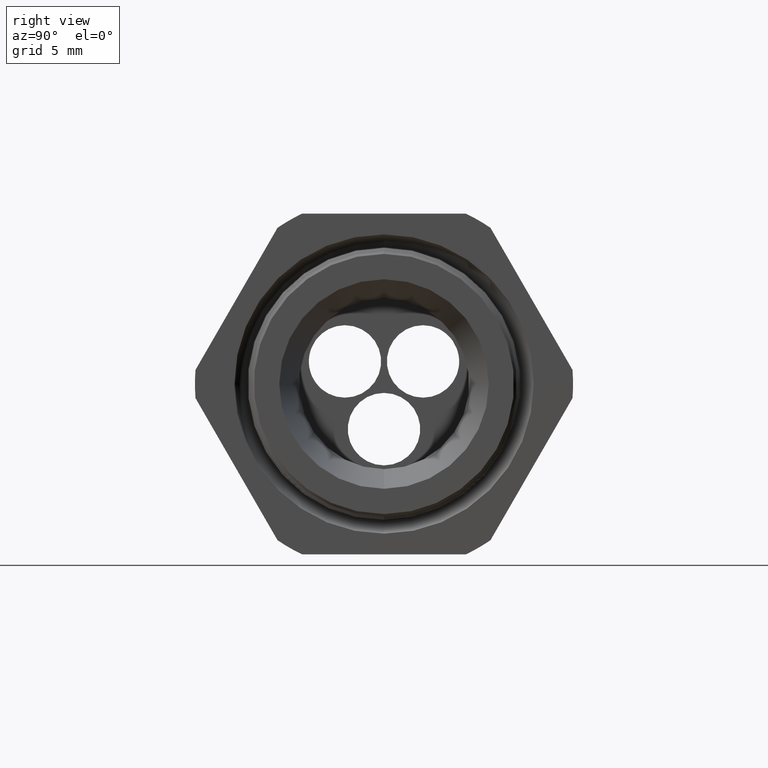
[diagram: clean part render]
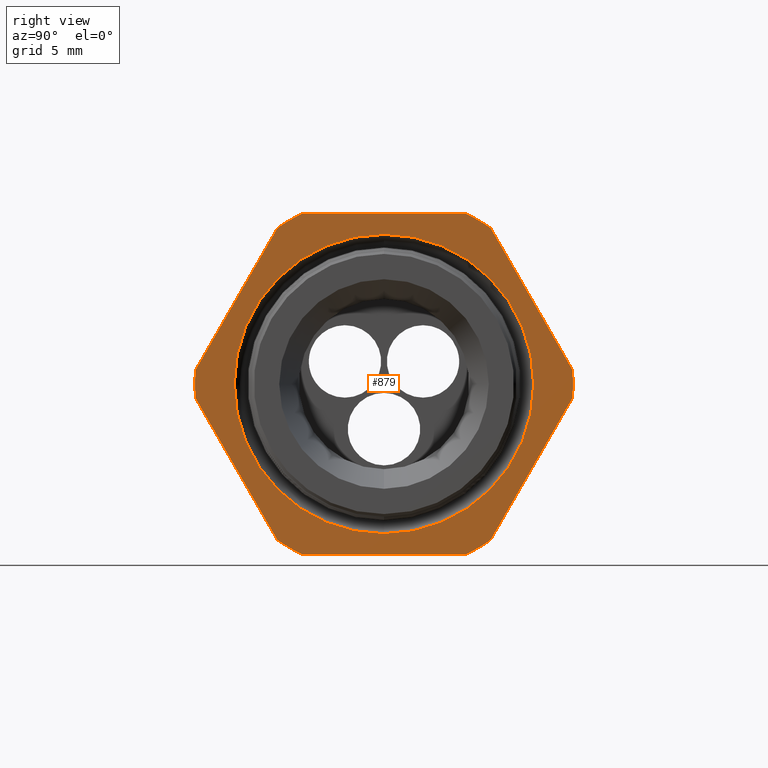
[diagram: same view with one face highlighted and labeled with its STEP entity id]
A machine part, right view. The second image highlights one B-rep face of the part: STEP entity #879.
In plain terms, the highlighted planar face has unit normal (1, 0, 0).
Its self-contained STEP definition (entity closure, byte-faithful):
#860 = VERTEX_POINT ( 'NONE', #3449 ) ;
#861 = ORIENTED_EDGE ( 'NONE', *, *, #862, .T. ) ;
#862 = EDGE_CURVE ( 'NONE', #860, #863, #3507, .T. ) ;
#863 = VERTEX_POINT ( 'NONE', #3502 ) ;
#864 = ORIENTED_EDGE ( 'NONE', *, *, #865, .T. ) ;
#865 = EDGE_CURVE ( 'NONE', #863, #866, #3501, .T. ) ;
#866 = VERTEX_POINT ( 'NONE', #3497 ) ;
#867 = ORIENTED_EDGE ( 'NONE', *, *, #868, .T. ) ;
#868 = EDGE_CURVE ( 'NONE', #866, #869, #3496, .T. ) ;
#869 = VERTEX_POINT ( 'NONE', #3491 ) ;
#870 = VERTEX_POINT ( 'NONE', #3490 ) ;
#879 = ADVANCED_FACE ( 'NONE', ( #3530, #3529 ), #3528, .T. ) ;
#880 = EDGE_LOOP ( 'NONE', ( #881, #938 ) ) ;
#881 = ORIENTED_EDGE ( 'NONE', *, *, #882, .F. ) ;
#882 = EDGE_CURVE ( 'NONE', #1326, #1323, #3523, .T. ) ;
#911 = ORIENTED_EDGE ( 'NONE', *, *, #912, .T. ) ;
#912 = EDGE_CURVE ( 'NONE', #937, #913, #3585, .T. ) ;
#913 = VERTEX_POINT ( 'NONE', #3581 ) ;
#914 = ORIENTED_EDGE ( 'NONE', *, *, #915, .T. ) ;
#915 = EDGE_CURVE ( 'NONE', #913, #916, #3580, .T. ) ;
#916 = VERTEX_POINT ( 'NONE', #3576 ) ;
#917 = ORIENTED_EDGE ( 'NONE', *, *, #918, .T. ) ;
#918 = EDGE_CURVE ( 'NONE', #916, #942, #3574, .T. ) ;
#924 = ORIENTED_EDGE ( 'NONE', *, *, #925, .T. ) ;
#925 = EDGE_CURVE ( 'NONE', #869, #870, #3621, .T. ) ;
#926 = ORIENTED_EDGE ( 'NONE', *, *, #927, .T. ) ;
#927 = EDGE_CURVE ( 'NONE', #870, #928, #3617, .T. ) ;
#928 = VERTEX_POINT ( 'NONE', #3612 ) ;
#929 = ORIENTED_EDGE ( 'NONE', *, *, #930, .T. ) ;
#930 = EDGE_CURVE ( 'NONE', #928, #931, #3611, .T. ) ;
#931 = VERTEX_POINT ( 'NONE', #3607 ) ;
#932 = ORIENTED_EDGE ( 'NONE', *, *, #933, .T. ) ;
#933 = EDGE_CURVE ( 'NONE', #931, #934, #3605, .T. ) ;
#934 = VERTEX_POINT ( 'NONE', #3665 ) ;
#935 = ORIENTED_EDGE ( 'NONE', *, *, #936, .T. ) ;
#936 = EDGE_CURVE ( 'NONE', #934, #937, #3664, .T. ) ;
#937 = VERTEX_POINT ( 'NONE', #3660 ) ;
#938 = ORIENTED_EDGE ( 'NONE', *, *, #1325, .F. ) ;
#939 = EDGE_LOOP ( 'NONE', ( #940, #861, #864, #867, #924, #926, #929, #932, #935, #911, #914, #917 ) ) ;
#940 = ORIENTED_EDGE ( 'NONE', *, *, #941, .T. ) ;
#941 = EDGE_CURVE ( 'NONE', #942, #860, #3659, .T. ) ;
#942 = VERTEX_POINT ( 'NONE', #3655 ) ;
#1323 = VERTEX_POINT ( 'NONE', #4201 ) ;
#1325 = EDGE_CURVE ( 'NONE', #1323, #1326, #4200, .T. ) ;
#1326 = VERTEX_POINT ( 'NONE', #4195 ) ;
#2864 = DIRECTION ( 'NONE',  ( 0.0000000000000000000, 0.0000000000000000000, -1.000000000000000000 ) ) ;
#3449 = CARTESIAN_POINT ( 'NONE',  ( -0.3100000000000000000, 0.5202473208008777700, -0.03890520787129528300 ) ) ;
#3490 = CARTESIAN_POINT ( 'NONE',  ( -0.3100000000000000000, -0.2264307620443835600, 0.4699999999999997500 ) ) ;
#3491 = CARTESIAN_POINT ( 'NONE',  ( -0.3100000000000000000, 0.2264307620443832800, 0.4699999999999999200 ) ) ;
#3492 = DIRECTION ( 'NONE',  ( 0.0000000000000000000, 0.0000000000000000000, -1.000000000000000000 ) ) ;
#3493 = DIRECTION ( 'NONE',  ( 1.000000000000000000, 0.0000000000000000000, 0.0000000000000000000 ) ) ;
#3494 = CARTESIAN_POINT ( 'NONE',  ( -0.3100000000000000000, 0.0000000000000000000, 0.0000000000000000000 ) ) ;
#3495 = AXIS2_PLACEMENT_3D ( 'NONE', #3494, #3493, #3492 ) ;
#3496 = CIRCLE ( 'NONE', #3495, 0.5217000000000000500 ) ;
#3497 = CARTESIAN_POINT ( 'NONE',  ( -0.3100000000000000000, 0.2938165587564948700, 0.4310947921287048800 ) ) ;
#3498 = DIRECTION ( 'NONE',  ( 0.0000000000000000000, -0.4999999999999998300, 0.8660254037844386000 ) ) ;
#3499 = VECTOR ( 'NONE', #3498, 39.37007874015748900 ) ;
#3500 = CARTESIAN_POINT ( 'NONE',  ( -0.3100000000000000000, 0.6420319397786862200, -0.1720319397786860500 ) ) ;
#3501 = LINE ( 'NONE', #3500, #3499 ) ;
#3502 = CARTESIAN_POINT ( 'NONE',  ( -0.3100000000000000000, 0.5202473208008776600, 0.03890520787129518600 ) ) ;
#3503 = DIRECTION ( 'NONE',  ( 0.0000000000000000000, 0.0000000000000000000, -1.000000000000000000 ) ) ;
#3504 = DIRECTION ( 'NONE',  ( 1.000000000000000000, 0.0000000000000000000, 0.0000000000000000000 ) ) ;
#3505 = CARTESIAN_POINT ( 'NONE',  ( -0.3100000000000000000, 0.0000000000000000000, 0.0000000000000000000 ) ) ;
#3506 = AXIS2_PLACEMENT_3D ( 'NONE', #3505, #3504, #3503 ) ;
#3507 = CIRCLE ( 'NONE', #3506, 0.5217000000000000500 ) ;
#3519 = DIRECTION ( 'NONE',  ( 0.0000000000000000000, 0.0000000000000000000, -1.000000000000000000 ) ) ;
#3520 = DIRECTION ( 'NONE',  ( 1.000000000000000000, 0.0000000000000000000, 0.0000000000000000000 ) ) ;
#3521 = CARTESIAN_POINT ( 'NONE',  ( -0.3100000000000000000, 0.0000000000000000000, 0.0000000000000000000 ) ) ;
#3522 = AXIS2_PLACEMENT_3D ( 'NONE', #3521, #3520, #3519 ) ;
#3523 = CIRCLE ( 'NONE', #3522, 0.4130016155952135900 ) ;
#3524 = DIRECTION ( 'NONE',  ( 0.0000000000000000000, 0.0000000000000000000, -1.000000000000000000 ) ) ;
#3525 = DIRECTION ( 'NONE',  ( 1.000000000000000000, 0.0000000000000000000, 0.0000000000000000000 ) ) ;
#3526 = CARTESIAN_POINT ( 'NONE',  ( -0.3100000000000000000, 0.9399999999999999500, 0.0000000000000000000 ) ) ;
#3527 = AXIS2_PLACEMENT_3D ( 'NONE', #3526, #3525, #3524 ) ;
#3528 = PLANE ( 'NONE',  #3527 ) ;
#3529 = FACE_OUTER_BOUND ( 'NONE', #939, .T. ) ;
#3530 = FACE_BOUND ( 'NONE', #880, .T. ) ;
#3573 = AXIS2_PLACEMENT_3D ( 'NONE', #3634, #3633, #3632 ) ;
#3574 = CIRCLE ( 'NONE', #3573, 0.5217000000000000500 ) ;
#3576 = CARTESIAN_POINT ( 'NONE',  ( -0.3100000000000000000, 0.2264307620443831200, -0.4700000000000000300 ) ) ;
#3577 = DIRECTION ( 'NONE',  ( 0.0000000000000000000, 1.000000000000000000, 0.0000000000000000000 ) ) ;
#3578 = VECTOR ( 'NONE', #3577, 39.37007874015748100 ) ;
#3579 = CARTESIAN_POINT ( 'NONE',  ( -0.3100000000000000000, 0.9399999999999999500, -0.4700000000000000300 ) ) ;
#3580 = LINE ( 'NONE', #3579, #3578 ) ;
#3581 = CARTESIAN_POINT ( 'NONE',  ( -0.3100000000000000000, -0.2264307620443830900, -0.4700000000000000300 ) ) ;
#3582 = DIRECTION ( 'NONE',  ( 0.0000000000000000000, 0.0000000000000000000, -1.000000000000000000 ) ) ;
#3583 = DIRECTION ( 'NONE',  ( 1.000000000000000000, 0.0000000000000000000, 0.0000000000000000000 ) ) ;
#3584 = AXIS2_PLACEMENT_3D ( 'NONE', #3590, #3583, #3582 ) ;
#3585 = CIRCLE ( 'NONE', #3584, 0.5217000000000000500 ) ;
#3590 = CARTESIAN_POINT ( 'NONE',  ( -0.3100000000000000000, 0.0000000000000000000, 0.0000000000000000000 ) ) ;
#3602 = DIRECTION ( 'NONE',  ( 1.000000000000000000, 0.0000000000000000000, 0.0000000000000000000 ) ) ;
#3603 = CARTESIAN_POINT ( 'NONE',  ( -0.3100000000000000000, 0.0000000000000000000, 0.0000000000000000000 ) ) ;
#3604 = AXIS2_PLACEMENT_3D ( 'NONE', #3603, #3602, #2864 ) ;
#3605 = CIRCLE ( 'NONE', #3604, 0.5217000000000000500 ) ;
#3607 = CARTESIAN_POINT ( 'NONE',  ( -0.3100000000000000000, -0.5202473208008777700, 0.03890520787129464500 ) ) ;
#3608 = DIRECTION ( 'NONE',  ( 0.0000000000000000000, -0.4999999999999997200, -0.8660254037844388200 ) ) ;
#3609 = VECTOR ( 'NONE', #3608, 39.37007874015748100 ) ;
#3610 = CARTESIAN_POINT ( 'NONE',  ( -0.3100000000000000000, -0.1720319397786864200, 0.6420319397786857800 ) ) ;
#3611 = LINE ( 'NONE', #3610, #3609 ) ;
#3612 = CARTESIAN_POINT ( 'NONE',  ( -0.3100000000000000000, -0.2938165587564948700, 0.4310947921287048800 ) ) ;
#3613 = DIRECTION ( 'NONE',  ( 0.0000000000000000000, 0.0000000000000000000, -1.000000000000000000 ) ) ;
#3614 = DIRECTION ( 'NONE',  ( 1.000000000000000000, 0.0000000000000000000, 0.0000000000000000000 ) ) ;
#3615 = CARTESIAN_POINT ( 'NONE',  ( -0.3100000000000000000, 0.0000000000000000000, 0.0000000000000000000 ) ) ;
#3616 = AXIS2_PLACEMENT_3D ( 'NONE', #3615, #3614, #3613 ) ;
#3617 = CIRCLE ( 'NONE', #3616, 0.5217000000000000500 ) ;
#3618 = DIRECTION ( 'NONE',  ( 0.0000000000000000000, -1.000000000000000000, 0.0000000000000000000 ) ) ;
#3619 = VECTOR ( 'NONE', #3618, 39.37007874015748100 ) ;
#3620 = CARTESIAN_POINT ( 'NONE',  ( -0.3100000000000000000, 0.9399999999999999500, 0.4699999999999999200 ) ) ;
#3621 = LINE ( 'NONE', #3620, #3619 ) ;
#3632 = DIRECTION ( 'NONE',  ( 0.0000000000000000000, 0.0000000000000000000, -1.000000000000000000 ) ) ;
#3633 = DIRECTION ( 'NONE',  ( 1.000000000000000000, 0.0000000000000000000, 0.0000000000000000000 ) ) ;
#3634 = CARTESIAN_POINT ( 'NONE',  ( -0.3100000000000000000, 0.0000000000000000000, 0.0000000000000000000 ) ) ;
#3655 = CARTESIAN_POINT ( 'NONE',  ( -0.3100000000000000000, 0.2938165587564948700, -0.4310947921287048800 ) ) ;
#3656 = DIRECTION ( 'NONE',  ( 0.0000000000000000000, 0.5000000000000000000, 0.8660254037844386000 ) ) ;
#3657 = VECTOR ( 'NONE', #3656, 39.37007874015748900 ) ;
#3658 = CARTESIAN_POINT ( 'NONE',  ( -0.3100000000000000000, 0.6420319397786863300, 0.1720319397786860500 ) ) ;
#3659 = LINE ( 'NONE', #3658, #3657 ) ;
#3660 = CARTESIAN_POINT ( 'NONE',  ( -0.3100000000000000000, -0.2938165587564942600, -0.4310947921287053300 ) ) ;
#3661 = DIRECTION ( 'NONE',  ( 0.0000000000000000000, 0.5000000000000001100, -0.8660254037844384900 ) ) ;
#3662 = VECTOR ( 'NONE', #3661, 39.37007874015748900 ) ;
#3663 = CARTESIAN_POINT ( 'NONE',  ( -0.3100000000000000000, -0.1720319397786861700, -0.6420319397786864400 ) ) ;
#3664 = LINE ( 'NONE', #3663, #3662 ) ;
#3665 = CARTESIAN_POINT ( 'NONE',  ( -0.3100000000000000000, -0.5202473208008777700, -0.03890520787129494300 ) ) ;
#4195 = CARTESIAN_POINT ( 'NONE',  ( -0.3100000000000000000, 0.0000000000000000000, -0.4130016155952135900 ) ) ;
#4196 = DIRECTION ( 'NONE',  ( 0.0000000000000000000, 0.0000000000000000000, -1.000000000000000000 ) ) ;
#4197 = DIRECTION ( 'NONE',  ( 1.000000000000000000, 0.0000000000000000000, 0.0000000000000000000 ) ) ;
#4198 = CARTESIAN_POINT ( 'NONE',  ( -0.3100000000000000000, 0.0000000000000000000, 0.0000000000000000000 ) ) ;
#4199 = AXIS2_PLACEMENT_3D ( 'NONE', #4198, #4197, #4196 ) ;
#4200 = CIRCLE ( 'NONE', #4199, 0.4130016155952135900 ) ;
#4201 = CARTESIAN_POINT ( 'NONE',  ( -0.3100000000000000000, 5.057811065813639400E-017, 0.4130016155952135900 ) ) ;